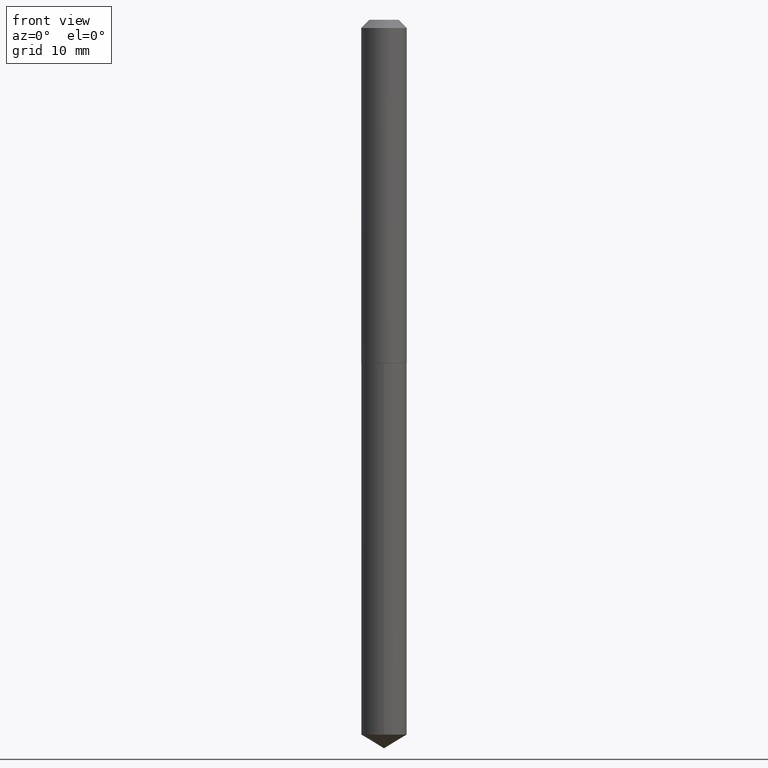
[diagram: clean part render]
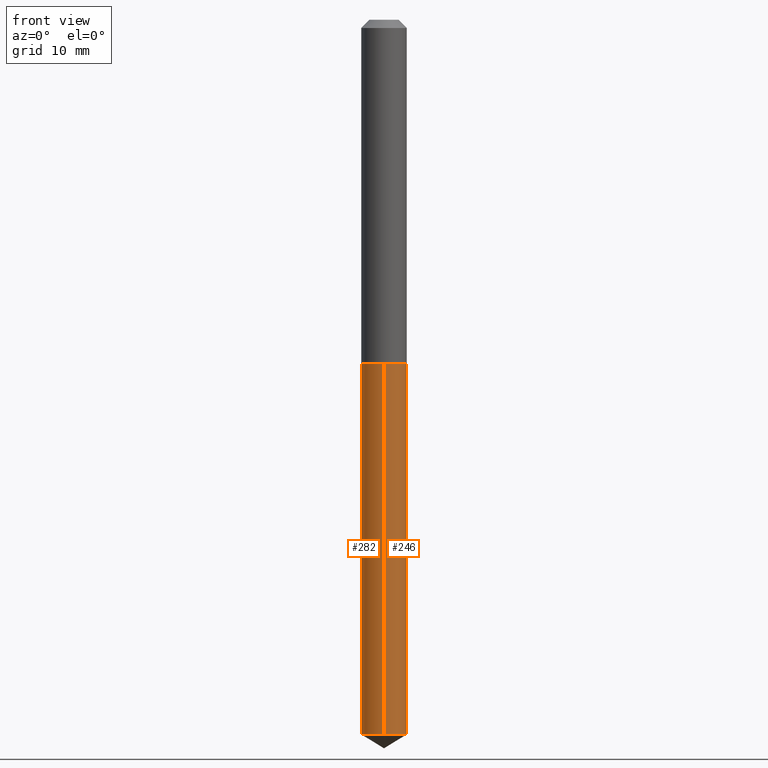
[diagram: same view with one multi-face feature highlighted, each face labeled with its STEP entity id]
A machine part, front view. The highlighted faces form ONE feature: a constant-radius fillet chain: 2 tangent blend faces with common blend radius 2.1831 mm. The faces share edges in the B-rep.
Their STEP definitions:
[1] entity #246 (Cylinder):
#3 = VERTEX_POINT ( 'NONE', #186 ) ;
#9 = VECTOR ( 'NONE', #15, 39.37007874015748143 ) ;
#11 = CARTESIAN_POINT ( 'NONE',  ( -6.001856421470686521E-16, -0.08595000000000943552, -2.698356029794580557 ) ) ;
#15 = DIRECTION ( 'NONE',  ( -2.445533378666723496E-29, 3.491388867374276404E-15, 1.000000000000000000 ) ) ;
#18 = CARTESIAN_POINT ( 'NONE',  ( 3.171528494741502879E-29, -4.528102148345674239E-15, -1.296899999999999720 ) ) ;
#21 = CARTESIAN_POINT ( 'NONE',  ( 6.107114813858720685E-16, 0.08594999999999056173, -2.698356029794581890 ) ) ;
#45 = DIRECTION ( 'NONE',  ( -6.982962677686266711E-15, -1.000000000000000000, 3.178415350394722068E-15 ) ) ;
#58 = ORIENTED_EDGE ( 'NONE', *, *, #69, .F. ) ;
#69 = EDGE_CURVE ( 'NONE', #121, #268, #309, .T. ) ;
#74 = DIRECTION ( 'NONE',  ( -2.445533378666723496E-29, 3.491388867374276404E-15, 1.000000000000000000 ) ) ;
#89 = AXIS2_PLACEMENT_3D ( 'NONE', #18, #196, #45 ) ;
#95 = EDGE_CURVE ( 'NONE', #121, #207, #123, .T. ) ;
#109 = CYLINDRICAL_SURFACE ( 'NONE', #89, 0.08594999999999998475 ) ;
#121 = VERTEX_POINT ( 'NONE', #11 ) ;
#123 = CIRCLE ( 'NONE', #287, 0.08594999999999998475 ) ;
#131 = DIRECTION ( 'NONE',  ( -6.982962677686266711E-15, -1.000000000000000000, 6.356830700789444137E-15 ) ) ;
#139 = EDGE_CURVE ( 'NONE', #268, #3, #201, .T. ) ;
#144 = ORIENTED_EDGE ( 'NONE', *, *, #172, .T. ) ;
#151 = ORIENTED_EDGE ( 'NONE', *, *, #139, .F. ) ;
#153 = CARTESIAN_POINT ( 'NONE',  ( -6.001856421471028690E-16, -0.08595000000000450890, -1.296899999999999498 ) ) ;
#172 = EDGE_CURVE ( 'NONE', #207, #3, #222, .T. ) ;
#186 = CARTESIAN_POINT ( 'NONE',  ( 6.107114813858721671E-16, 0.08594999999999546059, -1.296899999999999942 ) ) ;
#196 = DIRECTION ( 'NONE',  ( -2.445533378666723216E-29, 3.491388867374276010E-15, 1.000000000000000000 ) ) ;
#201 = CIRCLE ( 'NONE', #318, 0.08594999999999998475 ) ;
#207 = VERTEX_POINT ( 'NONE', #21 ) ;
#222 = LINE ( 'NONE', #263, #9 ) ;
#223 = CARTESIAN_POINT ( 'NONE',  ( -6.001856421471028690E-16, -0.08595000000000450890, -1.296899999999999498 ) ) ;
#242 = EDGE_LOOP ( 'NONE', ( #304, #144, #151, #58 ) ) ;
#246 = ADVANCED_FACE ( 'NONE', ( #354 ), #109, .T. ) ;
#253 = CARTESIAN_POINT ( 'NONE',  ( 3.171528494741502879E-29, -4.528102148345674239E-15, -1.296899999999999720 ) ) ;
#263 = CARTESIAN_POINT ( 'NONE',  ( 6.107114813858375558E-16, 0.08594999999999546059, -1.296899999999999942 ) ) ;
#268 = VERTEX_POINT ( 'NONE', #223 ) ;
#281 = DIRECTION ( 'NONE',  ( -6.982962677686266711E-15, -1.000000000000000000, 3.178415350394722068E-15 ) ) ;
#284 = DIRECTION ( 'NONE',  ( -2.445533378666723216E-29, 3.491388867374276010E-15, 1.000000000000000000 ) ) ;
#287 = AXIS2_PLACEMENT_3D ( 'NONE', #314, #284, #131 ) ;
#294 = VECTOR ( 'NONE', #74, 39.37007874015748143 ) ;
#304 = ORIENTED_EDGE ( 'NONE', *, *, #95, .T. ) ;
#307 = DIRECTION ( 'NONE',  ( -2.445533378666723216E-29, 3.491388867374276010E-15, 1.000000000000000000 ) ) ;
#309 = LINE ( 'NONE', #153, #294 ) ;
#314 = CARTESIAN_POINT ( 'NONE',  ( 6.598835994337897816E-29, -9.421130128885029605E-15, -2.698356029794581445 ) ) ;
#318 = AXIS2_PLACEMENT_3D ( 'NONE', #253, #307, #281 ) ;
#354 = FACE_OUTER_BOUND ( 'NONE', #242, .T. ) ;
[2] entity #282 (Cylinder):
#3 = VERTEX_POINT ( 'NONE', #186 ) ;
#9 = VECTOR ( 'NONE', #15, 39.37007874015748143 ) ;
#11 = CARTESIAN_POINT ( 'NONE',  ( -6.001856421470686521E-16, -0.08595000000000943552, -2.698356029794580557 ) ) ;
#15 = DIRECTION ( 'NONE',  ( -2.445533378666723496E-29, 3.491388867374276404E-15, 1.000000000000000000 ) ) ;
#21 = CARTESIAN_POINT ( 'NONE',  ( 6.107114813858720685E-16, 0.08594999999999056173, -2.698356029794581890 ) ) ;
#31 = ORIENTED_EDGE ( 'NONE', *, *, #378, .F. ) ;
#59 = CARTESIAN_POINT ( 'NONE',  ( 3.171528494741502879E-29, -4.528102148345674239E-15, -1.296899999999999720 ) ) ;
#69 = EDGE_CURVE ( 'NONE', #121, #268, #309, .T. ) ;
#74 = DIRECTION ( 'NONE',  ( -2.445533378666723496E-29, 3.491388867374276404E-15, 1.000000000000000000 ) ) ;
#75 = DIRECTION ( 'NONE',  ( -2.445533378666723216E-29, 3.491388867374276010E-15, 1.000000000000000000 ) ) ;
#76 = CYLINDRICAL_SURFACE ( 'NONE', #157, 0.08594999999999998475 ) ;
#85 = EDGE_LOOP ( 'NONE', ( #101, #299, #239, #31 ) ) ;
#101 = ORIENTED_EDGE ( 'NONE', *, *, #172, .F. ) ;
#105 = DIRECTION ( 'NONE',  ( -2.445533378666723216E-29, 3.491388867374276010E-15, 1.000000000000000000 ) ) ;
#107 = CARTESIAN_POINT ( 'NONE',  ( 6.598835994337897816E-29, -9.421130128885029605E-15, -2.698356029794581445 ) ) ;
#121 = VERTEX_POINT ( 'NONE', #11 ) ;
#138 = FACE_OUTER_BOUND ( 'NONE', #85, .T. ) ;
#140 = DIRECTION ( 'NONE',  ( -6.982962677686266711E-15, -1.000000000000000000, 3.178415350394722068E-15 ) ) ;
#153 = CARTESIAN_POINT ( 'NONE',  ( -6.001856421471028690E-16, -0.08595000000000450890, -1.296899999999999498 ) ) ;
#157 = AXIS2_PLACEMENT_3D ( 'NONE', #261, #75, #140 ) ;
#172 = EDGE_CURVE ( 'NONE', #207, #3, #222, .T. ) ;
#175 = DIRECTION ( 'NONE',  ( -2.445533378666723216E-29, 3.491388867374276010E-15, 1.000000000000000000 ) ) ;
#186 = CARTESIAN_POINT ( 'NONE',  ( 6.107114813858721671E-16, 0.08594999999999546059, -1.296899999999999942 ) ) ;
#207 = VERTEX_POINT ( 'NONE', #21 ) ;
#221 = AXIS2_PLACEMENT_3D ( 'NONE', #107, #105, #382 ) ;
#222 = LINE ( 'NONE', #263, #9 ) ;
#223 = CARTESIAN_POINT ( 'NONE',  ( -6.001856421471028690E-16, -0.08595000000000450890, -1.296899999999999498 ) ) ;
#239 = ORIENTED_EDGE ( 'NONE', *, *, #69, .T. ) ;
#259 = EDGE_CURVE ( 'NONE', #207, #121, #266, .T. ) ;
#261 = CARTESIAN_POINT ( 'NONE',  ( 3.171528494741502879E-29, -4.528102148345674239E-15, -1.296899999999999720 ) ) ;
#263 = CARTESIAN_POINT ( 'NONE',  ( 6.107114813858375558E-16, 0.08594999999999546059, -1.296899999999999942 ) ) ;
#266 = CIRCLE ( 'NONE', #221, 0.08594999999999998475 ) ;
#268 = VERTEX_POINT ( 'NONE', #223 ) ;
#282 = ADVANCED_FACE ( 'NONE', ( #138 ), #76, .T. ) ;
#294 = VECTOR ( 'NONE', #74, 39.37007874015748143 ) ;
#299 = ORIENTED_EDGE ( 'NONE', *, *, #259, .T. ) ;
#306 = CIRCLE ( 'NONE', #341, 0.08594999999999998475 ) ;
#309 = LINE ( 'NONE', #153, #294 ) ;
#341 = AXIS2_PLACEMENT_3D ( 'NONE', #59, #175, #364 ) ;
#364 = DIRECTION ( 'NONE',  ( -6.982962677686266711E-15, -1.000000000000000000, 3.178415350394722068E-15 ) ) ;
#378 = EDGE_CURVE ( 'NONE', #3, #268, #306, .T. ) ;
#382 = DIRECTION ( 'NONE',  ( -6.982962677686266711E-15, -1.000000000000000000, 6.356830700789444137E-15 ) ) ;